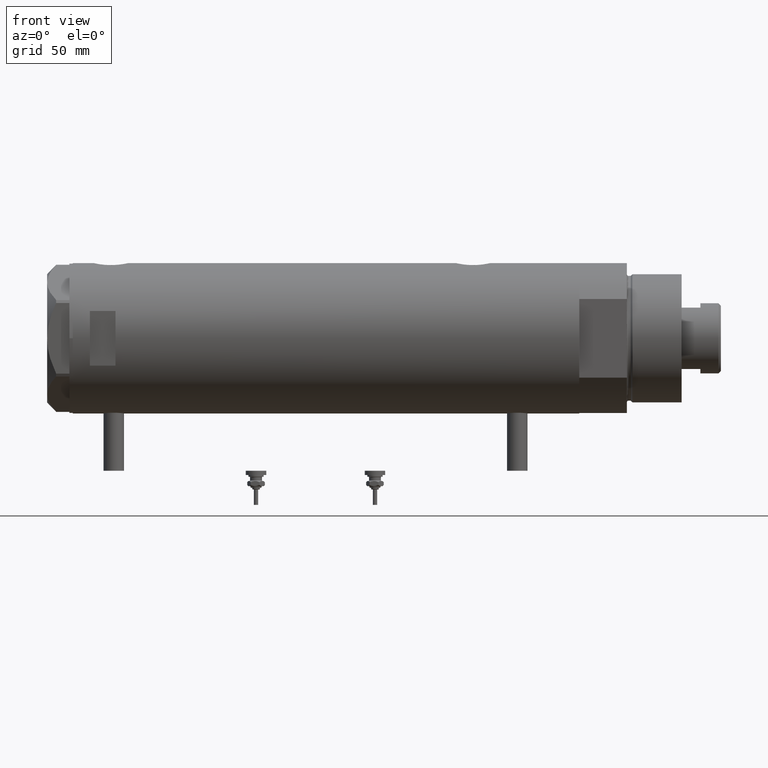
[diagram: clean part render]
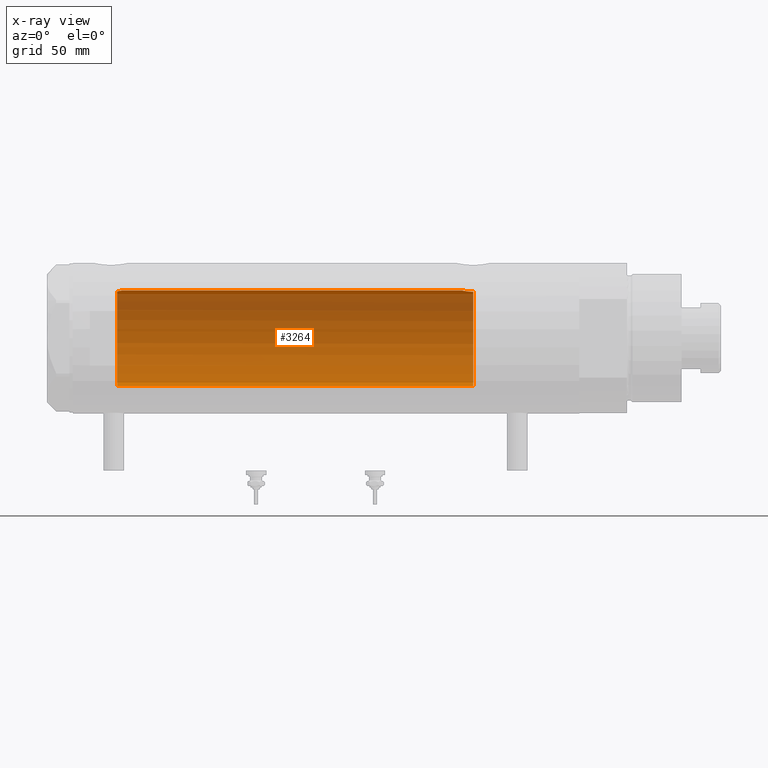
[diagram: x-ray — body ghosted, one internal face saturated and labeled with its STEP entity id]
A machine part, front view, then the same camera in x-ray: the body is ghosted and one INTERNAL B-rep face — a face not visible from any outside direction — is saturated and labeled: STEP entity #3264.
In plain terms, the highlighted cylindrical surface (partial cylindrical patch) has radius 28 mm, axis along (1, 0, -0).
Its self-contained STEP definition (entity closure, byte-faithful):
#42 = CARTESIAN_POINT ( 'NONE',  ( 27.98989376185446432, 0.8673308354119230179, -79.56259295538819742 ) ) ;
#68 = EDGE_CURVE ( 'NONE', #1968, #1607, #3063, .T. ) ;
#143 = EDGE_CURVE ( 'NONE', #5057, #1921, #264, .T. ) ;
#160 = CARTESIAN_POINT ( 'NONE',  ( 27.55311958554909069, 4.984468698502469763, -81.79897075987406652 ) ) ;
#181 = CARTESIAN_POINT ( 'NONE',  ( -28.00000000000000000, 0.000000000000000000, -86.20000000000000284 ) ) ;
#189 = CARTESIAN_POINT ( 'NONE',  ( 27.28989504668421162, 6.268149480003695651, -84.05093353430703473 ) ) ;
#264 = LINE ( 'NONE', #2092, #2318 ) ;
#303 = CARTESIAN_POINT ( 'NONE',  ( 27.52730847012277948, 5.126288527110434146, 121.7662339946191281 ) ) ;
#403 = CARTESIAN_POINT ( 'NONE',  ( 27.62184089756353345, 4.590621453796798868, 121.1784729639471863 ) ) ;
#604 = CARTESIAN_POINT ( 'NONE',  ( 0.000000000000000000, 0.000000000000000000, 148.1999999999999886 ) ) ;
#605 = AXIS2_PLACEMENT_3D ( 'NONE', #2204, #3984, #5864 ) ;
#626 = CARTESIAN_POINT ( 'NONE',  ( 27.21712162367727927, 6.574850051620751756, -85.76016190408793705 ) ) ;
#633 = CARTESIAN_POINT ( 'NONE',  ( 0.000000000000000000, 0.000000000000000000, 122.2000000000000028 ) ) ;
#1011 = CARTESIAN_POINT ( 'NONE',  ( 27.86588799758911250, 2.744542339393451158, -80.11578757899563641 ) ) ;
#1139 = EDGE_CURVE ( 'NONE', #1921, #1607, #3190, .T. ) ;
#1148 = CARTESIAN_POINT ( 'NONE',  ( 27.77951318121830226, 3.511620812961476545, -80.53115835401439426 ) ) ;
#1450 = CARTESIAN_POINT ( 'NONE',  ( 27.92057377942992957, 2.145335874642060769, -79.86449057456586331 ) ) ;
#1533 = ORIENTED_EDGE ( 'NONE', *, *, #1139, .T. ) ;
#1568 = CARTESIAN_POINT ( 'NONE',  ( -28.00000000000000000, 0.000000000000000000, 122.2000000000000028 ) ) ;
#1569 = CIRCLE ( 'NONE', #1769, 28.00000000000000000 ) ;
#1607 = VERTEX_POINT ( 'NONE', #2927 ) ;
#1641 = CARTESIAN_POINT ( 'NONE',  ( 27.77752716845532532, 3.554080867558345957, 120.3370280902186238 ) ) ;
#1766 = CARTESIAN_POINT ( 'NONE',  ( 27.93969014165222120, 1.855286977351521038, 119.5812411240566462 ) ) ;
#1769 = AXIS2_PLACEMENT_3D ( 'NONE', #633, #3367, #4380 ) ;
#1887 = FACE_OUTER_BOUND ( 'NONE', #5687, .T. ) ;
#1918 = DIRECTION ( 'NONE',  ( -0.000000000000000000, -0.000000000000000000, -1.000000000000000000 ) ) ;
#1921 = VERTEX_POINT ( 'NONE', #181 ) ;
#1953 = ORIENTED_EDGE ( 'NONE', *, *, #3302, .T. ) ;
#1968 = VERTEX_POINT ( 'NONE', #2544 ) ;
#1993 = CARTESIAN_POINT ( 'NONE',  ( 27.23306259439847921, 6.508606919525676382, -85.10931986330979271 ) ) ;
#2059 = B_SPLINE_CURVE_WITH_KNOTS ( 'NONE', 3,
 ( #3544, #3029, #303, #4546, #403, #4949, #1641, #5815, #4980, #5470, #1766, #3602, #5498, #3484 ),
 .UNSPECIFIED., .F., .F.,
 ( 4, 2, 2, 2, 2, 2, 4 ),
 ( 0.03488855882532452407, 0.03568791961119571754, 0.03648728039706691101, 0.03808600196880932570, 0.03888536275468051917, 0.03968472354055171958, 0.04128344511229410652 ),
 .UNSPECIFIED. ) ;
#2092 = CARTESIAN_POINT ( 'NONE',  ( -28.00000000000000000, 0.000000000000000000, 148.1999999999999886 ) ) ;
#2204 = CARTESIAN_POINT ( 'NONE',  ( 0.000000000000000000, 0.000000000000000000, -86.20000000000000284 ) ) ;
#2318 = VECTOR ( 'NONE', #4337, 1000.000000000000000 ) ;
#2341 = CARTESIAN_POINT ( 'NONE',  ( 28.00000000000000000, 8.058211040172173087E-16, -79.52000000000001023 ) ) ;
#2384 = ORIENTED_EDGE ( 'NONE', *, *, #143, .T. ) ;
#2457 = CARTESIAN_POINT ( 'NONE',  ( 27.22604017942137133, 6.537820648187913086, -85.32472952793342813 ) ) ;
#2525 = CYLINDRICAL_SURFACE ( 'NONE', #2729, 28.00000000000000000 ) ;
#2544 = CARTESIAN_POINT ( 'NONE',  ( 28.00000000000000000, 8.058211040172173087E-16, -79.52000000000001023 ) ) ;
#2554 = CARTESIAN_POINT ( 'NONE',  ( 27.21525044627864176, 6.582564457995945695, -85.98128103916469911 ) ) ;
#2729 = AXIS2_PLACEMENT_3D ( 'NONE', #604, #2907, #5340 ) ;
#2827 = CARTESIAN_POINT ( 'NONE',  ( 28.00000000000000000, 3.429011037612589276E-15, 148.1999999999999886 ) ) ;
#2907 = DIRECTION ( 'NONE',  ( -0.000000000000000000, -0.000000000000000000, -1.000000000000000000 ) ) ;
#2925 = VECTOR ( 'NONE', #1918, 1000.000000000000000 ) ;
#2926 = CARTESIAN_POINT ( 'NONE',  ( 27.70785054350542609, 4.050475470458774652, -80.89631279652928697 ) ) ;
#2927 = CARTESIAN_POINT ( 'NONE',  ( 27.21605408577812568, 6.579240077698946365, -86.20000000000000284 ) ) ;
#2965 = EDGE_CURVE ( 'NONE', #5722, #4977, #2059, .T. ) ;
#2984 = CARTESIAN_POINT ( 'NONE',  ( 27.50226589723265747, 5.257822516958271741, -82.13779315141979964 ) ) ;
#3021 = CARTESIAN_POINT ( 'NONE',  ( 27.47751794615730248, 5.385218554237045652, -82.31285718566402920 ) ) ;
#3029 = CARTESIAN_POINT ( 'NONE',  ( 27.49602064413224056, 5.290780227724648732, 121.9788292468204673 ) ) ;
#3063 = B_SPLINE_CURVE_WITH_KNOTS ( 'NONE', 3,
 ( #2341, #4182, #42, #3742, #1450, #1011, #4838, #3924, #1148, #2926, #4775, #4915, #160, #2984, #3021, #3451, #4876, #189, #3362, #1993, #2457, #626, #2554, #5808 ),
 .UNSPECIFIED., .F., .F.,
 ( 4, 2, 2, 2, 2, 2, 2, 2, 2, 2, 2, 4 ),
 ( 0.02064447638625020037, 0.02194711032043803953, 0.02324974425462587868, 0.02390106122171980693, 0.02455237818881373518, 0.02585501212300159168, 0.02650632909009551647, 0.02715764605718944472, 0.02846027999137729775, 0.02976291392556515425, 0.03041423089265907903, 0.03106554785975300728 ),
 .UNSPECIFIED. ) ;
#3190 = CIRCLE ( 'NONE', #605, 28.00000000000000000 ) ;
#3264 = ADVANCED_FACE ( 'NONE', ( #1887 ), #2525, .F. ) ;
#3302 = EDGE_CURVE ( 'NONE', #5722, #5057, #1569, .T. ) ;
#3362 = CARTESIAN_POINT ( 'NONE',  ( 27.26132124301008730, 6.389601967157238604, -84.46983701249828869 ) ) ;
#3367 = DIRECTION ( 'NONE',  ( 0.000000000000000000, 0.000000000000000000, 1.000000000000000000 ) ) ;
#3451 = CARTESIAN_POINT ( 'NONE',  ( 27.40633791352276205, 5.740289853568793177, -82.85469713442370221 ) ) ;
#3476 = CARTESIAN_POINT ( 'NONE',  ( 28.00000000000000000, 0.000000000000000000, 119.3200000000000074 ) ) ;
#3484 = CARTESIAN_POINT ( 'NONE',  ( 28.00000000000000000, 0.000000000000000000, 119.3200000000000074 ) ) ;
#3544 = CARTESIAN_POINT ( 'NONE',  ( 27.46622653369042766, 5.441176343402222670, 122.2000000000000028 ) ) ;
#3602 = CARTESIAN_POINT ( 'NONE',  ( 27.98435453724556510, 1.072101232728050801, 119.3856609737169094 ) ) ;
#3693 = ORIENTED_EDGE ( 'NONE', *, *, #2965, .F. ) ;
#3705 = LINE ( 'NONE', #2827, #2925 ) ;
#3742 = CARTESIAN_POINT ( 'NONE',  ( 27.94984428957576483, 1.729919005741095805, -79.73624844305086867 ) ) ;
#3924 = CARTESIAN_POINT ( 'NONE',  ( 27.80267334785859390, 3.323944738624906581, -80.41709962017577595 ) ) ;
#3984 = DIRECTION ( 'NONE',  ( 0.000000000000000000, 0.000000000000000000, -1.000000000000000000 ) ) ;
#4182 = CARTESIAN_POINT ( 'NONE',  ( 28.00000000000000000, 0.4344375524774752306, -79.51999999999999602 ) ) ;
#4311 = CARTESIAN_POINT ( 'NONE',  ( 27.46622653369042766, 5.441176343402222670, 122.2000000000000028 ) ) ;
#4337 = DIRECTION ( 'NONE',  ( -0.000000000000000000, -0.000000000000000000, -1.000000000000000000 ) ) ;
#4380 = DIRECTION ( 'NONE',  ( 1.000000000000000000, 0.000000000000000000, 0.000000000000000000 ) ) ;
#4513 = ORIENTED_EDGE ( 'NONE', *, *, #4596, .F. ) ;
#4546 = CARTESIAN_POINT ( 'NONE',  ( 27.59012538417911031, 4.776664836238034617, 121.3667529856984544 ) ) ;
#4596 = EDGE_CURVE ( 'NONE', #4977, #1968, #3705, .T. ) ;
#4775 = CARTESIAN_POINT ( 'NONE',  ( 27.65669575048418238, 4.382057994727794004, -81.17233761202035680 ) ) ;
#4838 = CARTESIAN_POINT ( 'NONE',  ( 27.84585502960274539, 2.940342086136629618, -80.20946914370765057 ) ) ;
#4876 = CARTESIAN_POINT ( 'NONE',  ( 27.36295003163000672, 5.941130795499228512, -83.23794896005176724 ) ) ;
#4915 = CARTESIAN_POINT ( 'NONE',  ( 27.57921322802619457, 4.838471943606464265, -81.63541026849053139 ) ) ;
#4949 = CARTESIAN_POINT ( 'NONE',  ( 27.71586615897684069, 3.998795151939223746, 120.6476739562574778 ) ) ;
#4977 = VERTEX_POINT ( 'NONE', #3476 ) ;
#4980 = CARTESIAN_POINT ( 'NONE',  ( 27.87926027245440963, 2.609415915507857342, 119.8536592036424508 ) ) ;
#5057 = VERTEX_POINT ( 'NONE', #1568 ) ;
#5340 = DIRECTION ( 'NONE',  ( -1.000000000000000000, 0.000000000000000000, 0.000000000000000000 ) ) ;
#5418 = ORIENTED_EDGE ( 'NONE', *, *, #68, .F. ) ;
#5470 = CARTESIAN_POINT ( 'NONE',  ( 27.92131942247210219, 2.112374604004422007, 119.6625997420270977 ) ) ;
#5498 = CARTESIAN_POINT ( 'NONE',  ( 28.00000000000000000, 0.5407212781083797770, 119.3200000000000216 ) ) ;
#5687 = EDGE_LOOP ( 'NONE', ( #4513, #3693, #1953, #2384, #1533, #5418 ) ) ;
#5722 = VERTEX_POINT ( 'NONE', #4311 ) ;
#5808 = CARTESIAN_POINT ( 'NONE',  ( 27.21605408577812568, 6.579240077698946365, -86.20000000000000284 ) ) ;
#5815 = CARTESIAN_POINT ( 'NONE',  ( 27.85549123290575935, 2.850830541327390666, 119.9637046868290611 ) ) ;
#5864 = DIRECTION ( 'NONE',  ( -1.000000000000000000, 0.000000000000000000, 0.000000000000000000 ) ) ;